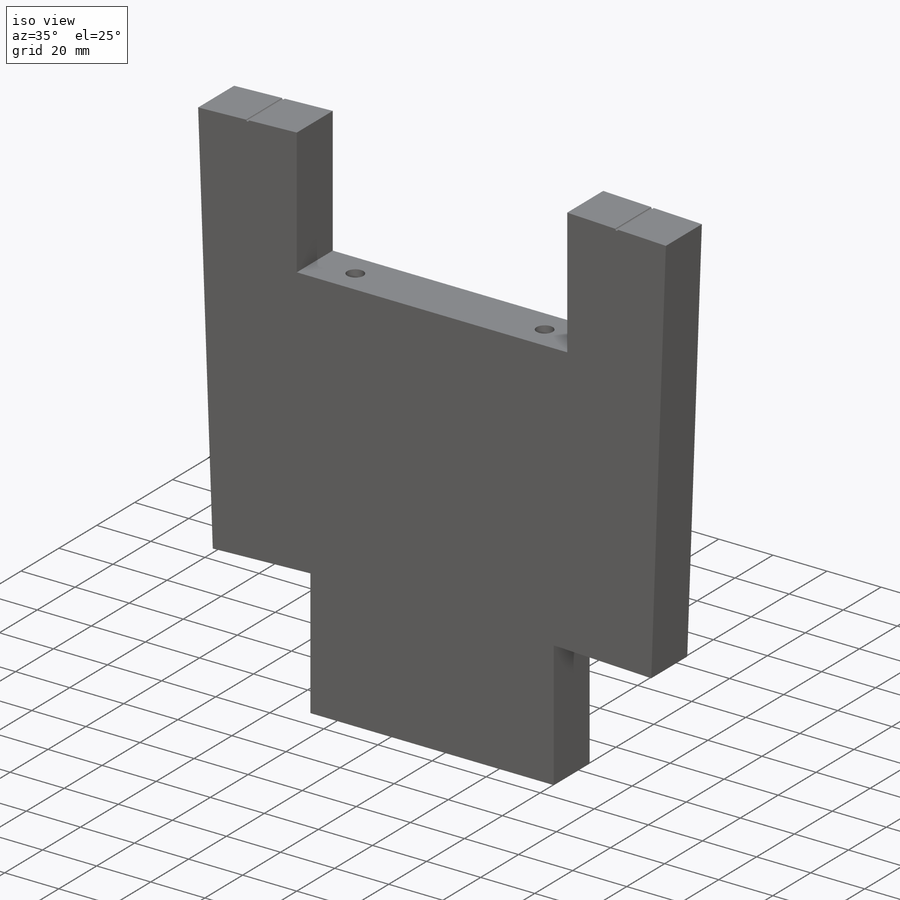
[diagram: iso view]
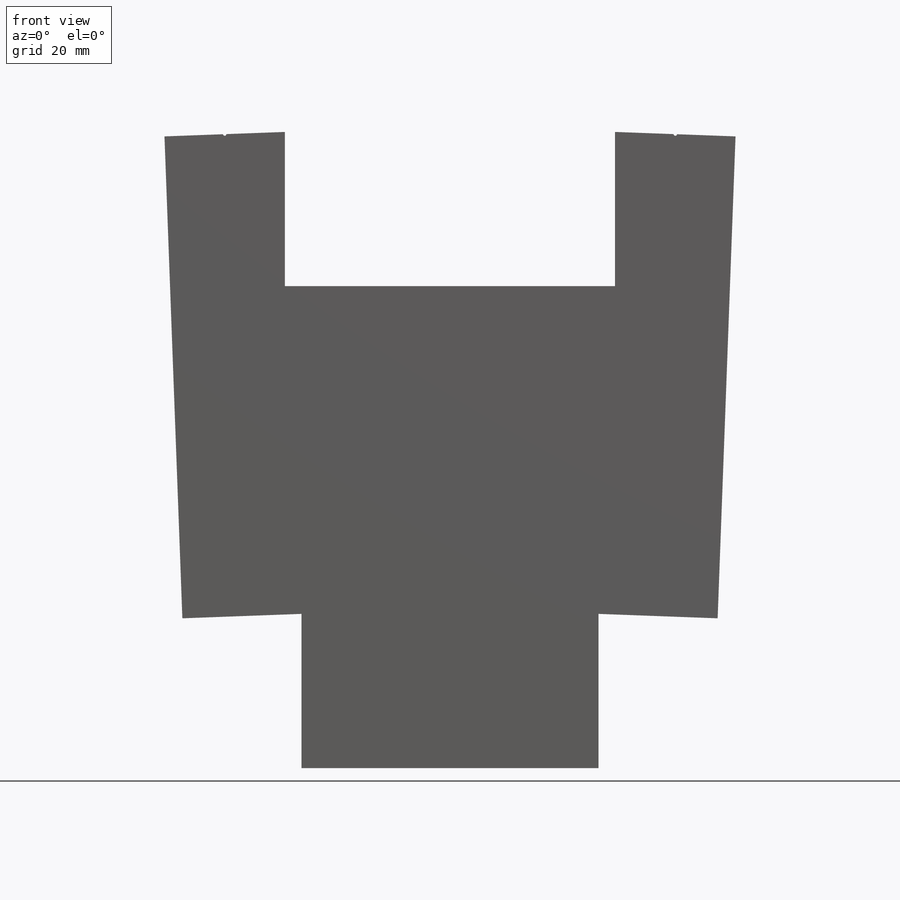
[diagram: front view]
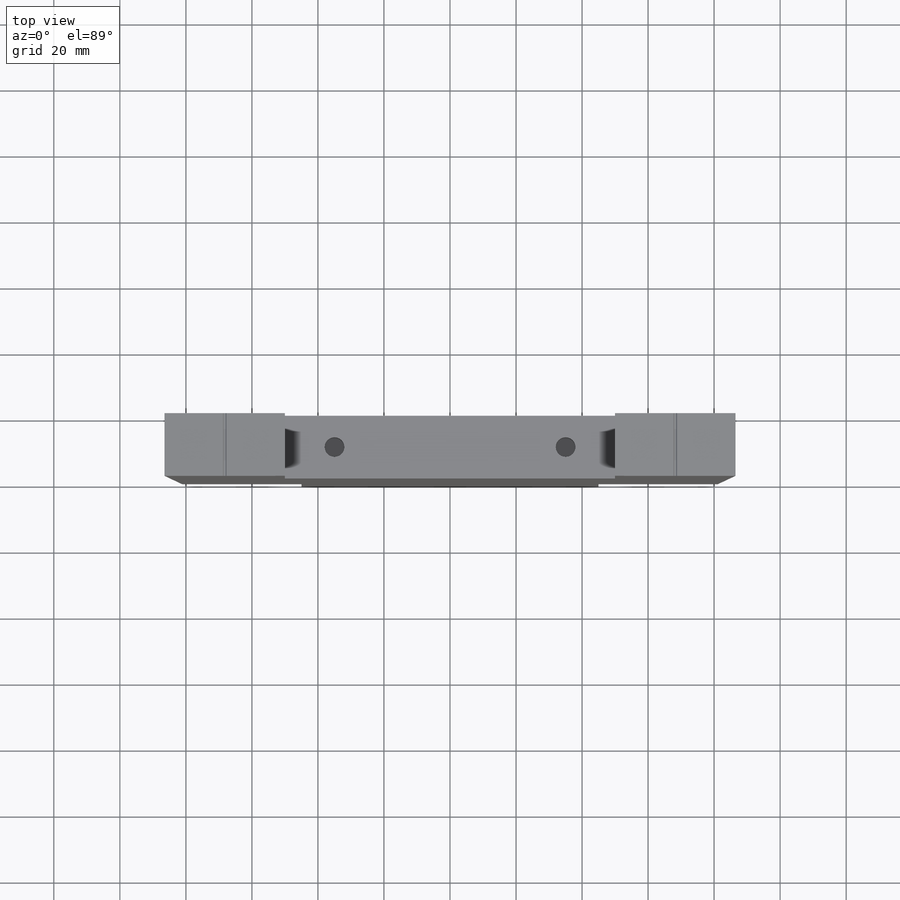
[diagram: top view]
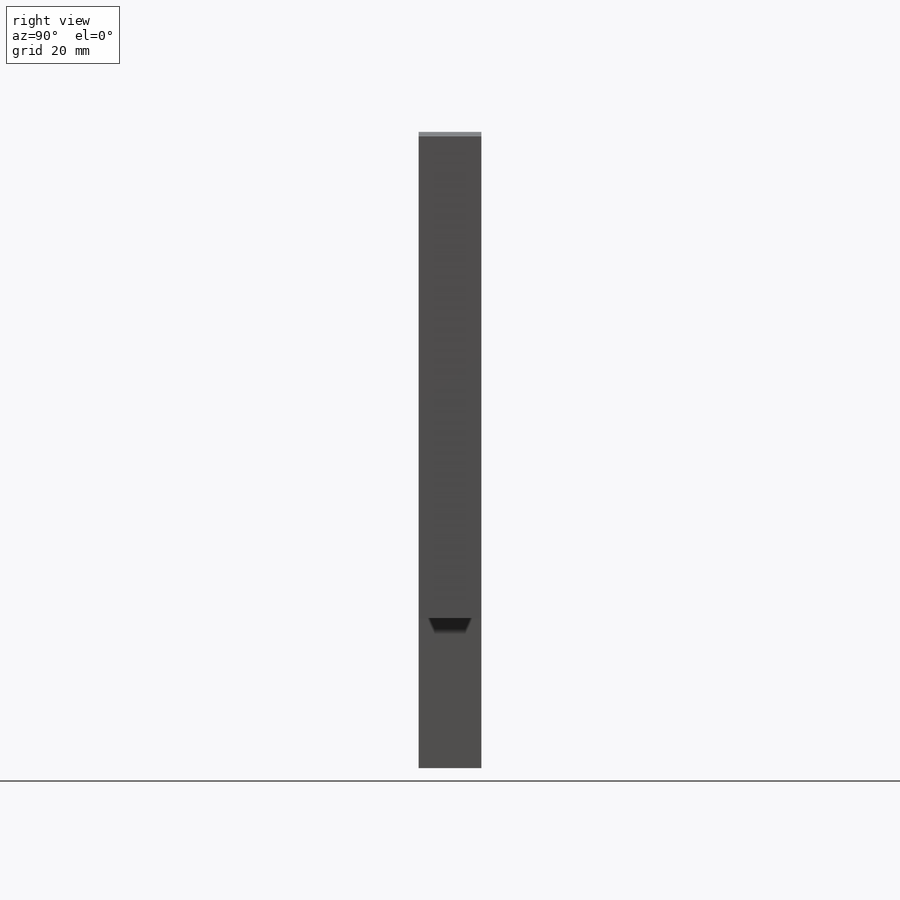
[diagram: right view]
SOLIDWORKS PART (.sldprt)
format: sldprt  version: not decoded by parser v0  size: 372,224 bytes
history: native  units: mm
features: sketch x6, cut_extrude x3, material x1, extrude x1 (+11 scaffold rows collapsed)
feature tree (22):
  scaffold x11  (default folders/planes/origin — collapsed)
  material  "Material <not specified>"
  sketch  "Sketch1"  dims[c1.D1=292.1mm c1.D2=2438.4mm c1.D3=102.0mm c1.D4=38.0mm c1.D5=89.0mm c1.D6=12.7mm c1.D7=100.0mm c1.D8=200.0mm c1.D9=~2515.254019mm c2.D9=~78.109527deg c2.D10=~75.058006mm c3.D10=78.11deg c3.D11=50.0mm c3.D12=100.0mm c3.D13=25.0mm c3.D14=~2523.212289mm c4.D14=46.06deg c4.D15=~213.344569mm c5.D15=~46.064875deg c5.D16=~15.948505mm c6.D16=~32.049527deg]
  sketch  "Sketch2"  dims[D1=1.0mm]
  extrude  "Boss-Extrude1"  Depth=19mm
  sketch  "Sketch4"  dims[c1.D1=5.0mm c1.D2=5.0mm c2.D1=5.0mm c2.D2=5.0mm]
  cut_extrude  "Cut-Extrude1"  Depth=19mm
  sketch  "Sketch5"  dims[D1=6.0mm D2=6.0mm D3=~24.514062mm D4=31.0mm]
  sketch  "Sketch6"  dims[D1=6.0mm D2=6.0mm]
  cut_extrude  "Cut-Extrude2"  Depth=10mm
  sketch  "Sketch7"  dims[D1=1.0mm]
  cut_extrude  "Cut-Extrude3"  Depth=20mm
decode coverage: 10 of 10 modeling features carry decoded parameters
note: ~ marks probable driven/reference dimensions
note: suppression state not decoded; provenance and decode notes live in map.json
